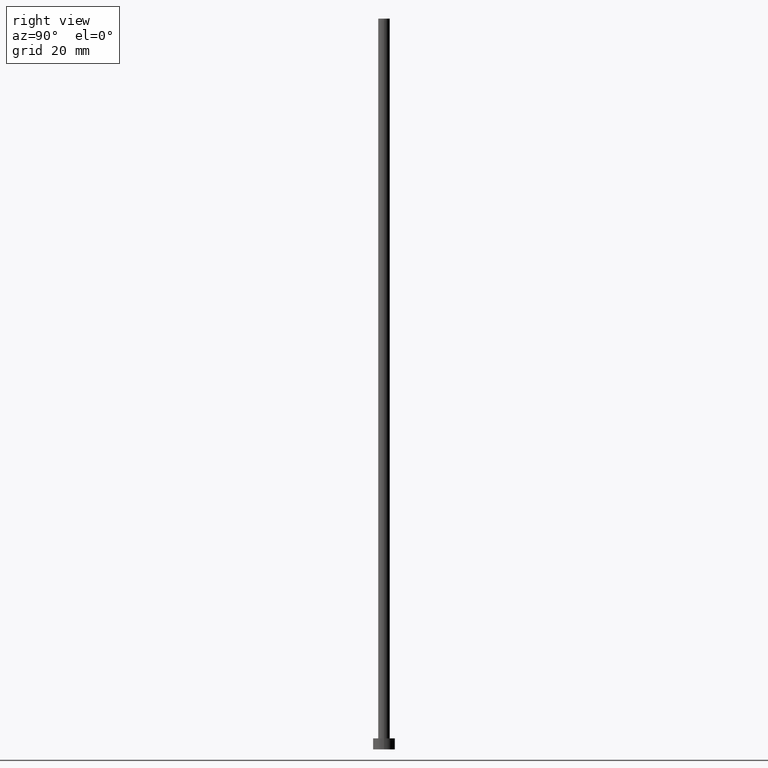
[diagram: clean part render]
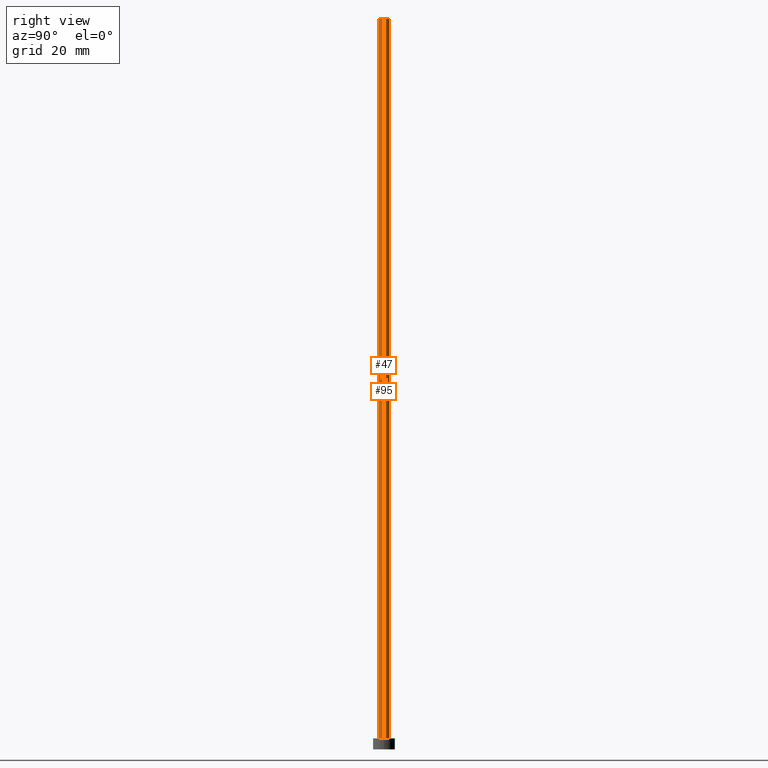
[diagram: same view with one multi-face feature highlighted, each face labeled with its STEP entity id]
A machine part, right view. The highlighted faces form ONE feature: a constant-radius fillet chain: 2 tangent blend faces with common blend radius 1.6 mm. The faces share edges in the B-rep.
Their STEP definitions:
[1] entity #95 (Cylinder):
#9 = ORIENTED_EDGE ( 'NONE', *, *, #53, .F. ) ;
#10 = ORIENTED_EDGE ( 'NONE', *, *, #122, .T. ) ;
#24 = EDGE_CURVE ( 'NONE', #90, #147, #125, .T. ) ;
#31 = VECTOR ( 'NONE', #116, 1000.000000000000000 ) ;
#32 = DIRECTION ( 'NONE',  ( 0.000000000000000000, 0.000000000000000000, 1.000000000000000000 ) ) ;
#38 = ORIENTED_EDGE ( 'NONE', *, *, #24, .T. ) ;
#42 = DIRECTION ( 'NONE',  ( -0.000000000000000000, -0.000000000000000000, -1.000000000000000000 ) ) ;
#45 = LINE ( 'NONE', #129, #31 ) ;
#53 = EDGE_CURVE ( 'NONE', #164, #108, #142, .T. ) ;
#59 = DIRECTION ( 'NONE',  ( 0.000000000000000000, 0.000000000000000000, 1.000000000000000000 ) ) ;
#63 = CARTESIAN_POINT ( 'NONE',  ( -1.600000000000000089, 0.000000000000000000, 3.000000000000000000 ) ) ;
#68 = EDGE_LOOP ( 'NONE', ( #9, #10, #38, #248 ) ) ;
#76 = CARTESIAN_POINT ( 'NONE',  ( 1.600000000000000089, 1.959434878635765230E-16, 200.0000000000000000 ) ) ;
#79 = LINE ( 'NONE', #76, #233 ) ;
#90 = VERTEX_POINT ( 'NONE', #194 ) ;
#92 = CARTESIAN_POINT ( 'NONE',  ( -1.600000000000000089, 0.000000000000000000, 200.0000000000000000 ) ) ;
#94 = CYLINDRICAL_SURFACE ( 'NONE', #121, 1.600000000000000089 ) ;
#95 = ADVANCED_FACE ( 'NONE', ( #255 ), #94, .T. ) ;
#108 = VERTEX_POINT ( 'NONE', #92 ) ;
#109 = CARTESIAN_POINT ( 'NONE',  ( 1.600000000000000089, 1.959434878635765230E-16, 200.0000000000000000 ) ) ;
#116 = DIRECTION ( 'NONE',  ( -0.000000000000000000, -0.000000000000000000, -1.000000000000000000 ) ) ;
#121 = AXIS2_PLACEMENT_3D ( 'NONE', #149, #254, #234 ) ;
#122 = EDGE_CURVE ( 'NONE', #164, #90, #79, .T. ) ;
#125 = CIRCLE ( 'NONE', #196, 1.600000000000000089 ) ;
#129 = CARTESIAN_POINT ( 'NONE',  ( -1.600000000000000089, 0.000000000000000000, 200.0000000000000000 ) ) ;
#142 = CIRCLE ( 'NONE', #145, 1.600000000000000089 ) ;
#145 = AXIS2_PLACEMENT_3D ( 'NONE', #213, #59, #175 ) ;
#147 = VERTEX_POINT ( 'NONE', #63 ) ;
#149 = CARTESIAN_POINT ( 'NONE',  ( 0.000000000000000000, 0.000000000000000000, 200.0000000000000000 ) ) ;
#156 = EDGE_CURVE ( 'NONE', #108, #147, #45, .T. ) ;
#164 = VERTEX_POINT ( 'NONE', #109 ) ;
#175 = DIRECTION ( 'NONE',  ( 1.000000000000000000, 0.000000000000000000, 0.000000000000000000 ) ) ;
#185 = DIRECTION ( 'NONE',  ( 1.000000000000000000, 0.000000000000000000, 0.000000000000000000 ) ) ;
#194 = CARTESIAN_POINT ( 'NONE',  ( 1.600000000000000089, 1.959434878635765230E-16, 3.000000000000000000 ) ) ;
#196 = AXIS2_PLACEMENT_3D ( 'NONE', #249, #32, #185 ) ;
#213 = CARTESIAN_POINT ( 'NONE',  ( 0.000000000000000000, 0.000000000000000000, 200.0000000000000000 ) ) ;
#233 = VECTOR ( 'NONE', #42, 1000.000000000000000 ) ;
#234 = DIRECTION ( 'NONE',  ( -1.000000000000000000, 0.000000000000000000, 0.000000000000000000 ) ) ;
#248 = ORIENTED_EDGE ( 'NONE', *, *, #156, .F. ) ;
#249 = CARTESIAN_POINT ( 'NONE',  ( 0.000000000000000000, 0.000000000000000000, 3.000000000000000000 ) ) ;
#254 = DIRECTION ( 'NONE',  ( -0.000000000000000000, -0.000000000000000000, -1.000000000000000000 ) ) ;
#255 = FACE_OUTER_BOUND ( 'NONE', #68, .T. ) ;
[2] entity #47 (Cylinder):
#11 = CIRCLE ( 'NONE', #212, 1.600000000000000089 ) ;
#15 = CARTESIAN_POINT ( 'NONE',  ( 0.000000000000000000, 0.000000000000000000, 200.0000000000000000 ) ) ;
#17 = DIRECTION ( 'NONE',  ( -1.000000000000000000, 0.000000000000000000, 0.000000000000000000 ) ) ;
#31 = VECTOR ( 'NONE', #116, 1000.000000000000000 ) ;
#40 = DIRECTION ( 'NONE',  ( -0.000000000000000000, -0.000000000000000000, -1.000000000000000000 ) ) ;
#42 = DIRECTION ( 'NONE',  ( -0.000000000000000000, -0.000000000000000000, -1.000000000000000000 ) ) ;
#44 = CYLINDRICAL_SURFACE ( 'NONE', #227, 1.600000000000000089 ) ;
#45 = LINE ( 'NONE', #129, #31 ) ;
#47 = ADVANCED_FACE ( 'NONE', ( #135 ), #44, .T. ) ;
#54 = ORIENTED_EDGE ( 'NONE', *, *, #137, .F. ) ;
#58 = DIRECTION ( 'NONE',  ( 1.000000000000000000, 0.000000000000000000, 0.000000000000000000 ) ) ;
#63 = CARTESIAN_POINT ( 'NONE',  ( -1.600000000000000089, 0.000000000000000000, 3.000000000000000000 ) ) ;
#72 = ORIENTED_EDGE ( 'NONE', *, *, #156, .T. ) ;
#76 = CARTESIAN_POINT ( 'NONE',  ( 1.600000000000000089, 1.959434878635765230E-16, 200.0000000000000000 ) ) ;
#79 = LINE ( 'NONE', #76, #233 ) ;
#90 = VERTEX_POINT ( 'NONE', #194 ) ;
#92 = CARTESIAN_POINT ( 'NONE',  ( -1.600000000000000089, 0.000000000000000000, 200.0000000000000000 ) ) ;
#108 = VERTEX_POINT ( 'NONE', #92 ) ;
#109 = CARTESIAN_POINT ( 'NONE',  ( 1.600000000000000089, 1.959434878635765230E-16, 200.0000000000000000 ) ) ;
#114 = DIRECTION ( 'NONE',  ( 0.000000000000000000, 0.000000000000000000, 1.000000000000000000 ) ) ;
#116 = DIRECTION ( 'NONE',  ( -0.000000000000000000, -0.000000000000000000, -1.000000000000000000 ) ) ;
#122 = EDGE_CURVE ( 'NONE', #164, #90, #79, .T. ) ;
#126 = EDGE_CURVE ( 'NONE', #147, #90, #11, .T. ) ;
#128 = ORIENTED_EDGE ( 'NONE', *, *, #126, .T. ) ;
#129 = CARTESIAN_POINT ( 'NONE',  ( -1.600000000000000089, 0.000000000000000000, 200.0000000000000000 ) ) ;
#135 = FACE_OUTER_BOUND ( 'NONE', #245, .T. ) ;
#137 = EDGE_CURVE ( 'NONE', #108, #164, #192, .T. ) ;
#147 = VERTEX_POINT ( 'NONE', #63 ) ;
#150 = DIRECTION ( 'NONE',  ( 1.000000000000000000, 0.000000000000000000, 0.000000000000000000 ) ) ;
#156 = EDGE_CURVE ( 'NONE', #108, #147, #45, .T. ) ;
#164 = VERTEX_POINT ( 'NONE', #109 ) ;
#174 = CARTESIAN_POINT ( 'NONE',  ( 0.000000000000000000, 0.000000000000000000, 200.0000000000000000 ) ) ;
#192 = CIRCLE ( 'NONE', #250, 1.600000000000000089 ) ;
#193 = CARTESIAN_POINT ( 'NONE',  ( 0.000000000000000000, 0.000000000000000000, 3.000000000000000000 ) ) ;
#194 = CARTESIAN_POINT ( 'NONE',  ( 1.600000000000000089, 1.959434878635765230E-16, 3.000000000000000000 ) ) ;
#209 = ORIENTED_EDGE ( 'NONE', *, *, #122, .F. ) ;
#212 = AXIS2_PLACEMENT_3D ( 'NONE', #193, #235, #150 ) ;
#227 = AXIS2_PLACEMENT_3D ( 'NONE', #174, #40, #17 ) ;
#233 = VECTOR ( 'NONE', #42, 1000.000000000000000 ) ;
#235 = DIRECTION ( 'NONE',  ( 0.000000000000000000, 0.000000000000000000, 1.000000000000000000 ) ) ;
#245 = EDGE_LOOP ( 'NONE', ( #209, #54, #72, #128 ) ) ;
#250 = AXIS2_PLACEMENT_3D ( 'NONE', #15, #114, #58 ) ;